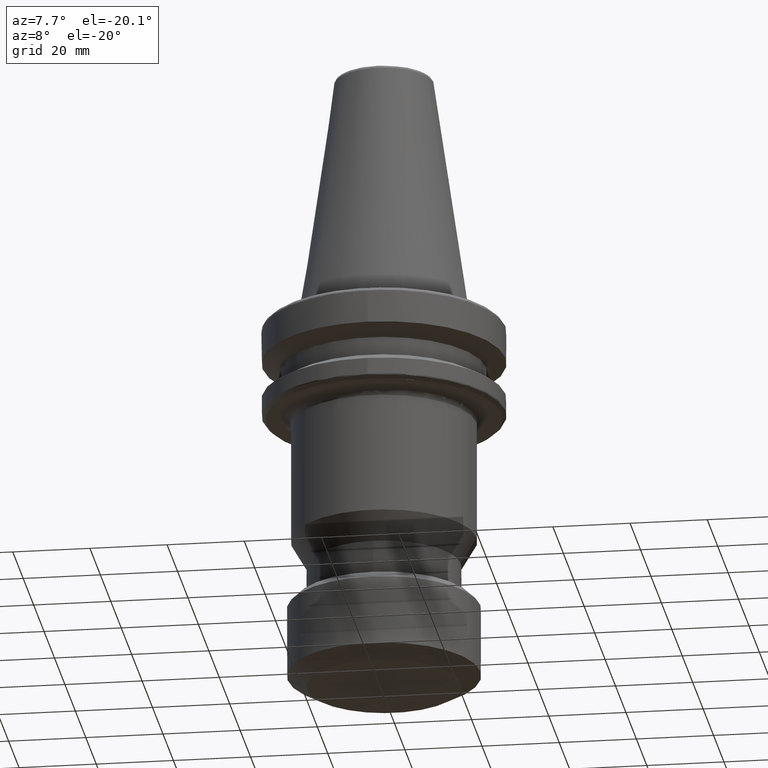
[diagram: clean part render]
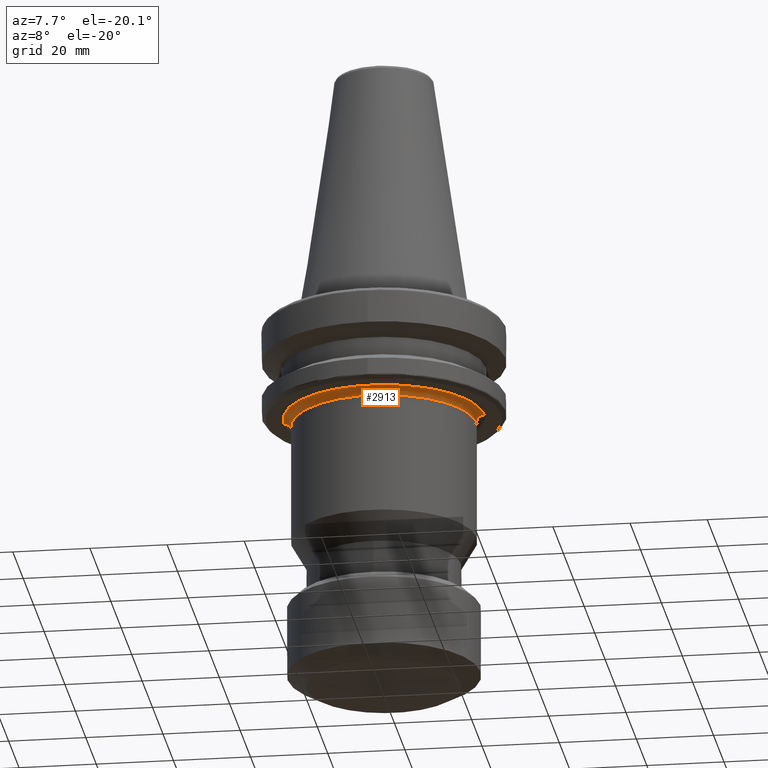
[diagram: same view with one face highlighted and labeled with its STEP entity id]
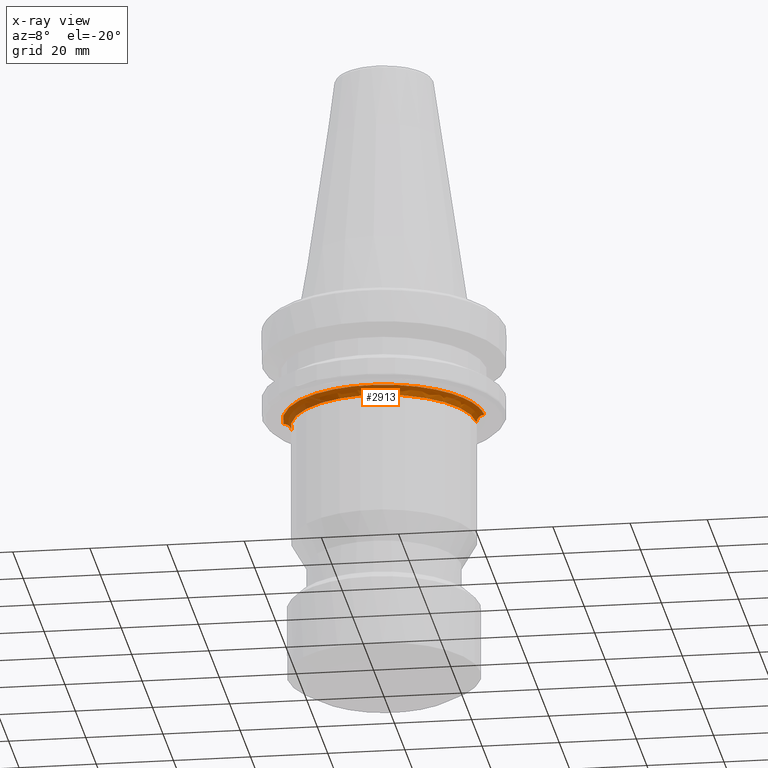
[diagram: x-ray of the same camera — body ghosted, the highlighted face saturated]
A machine part, auxiliary view. The second image highlights one B-rep face of the part: STEP entity #2913.
The next image is the same camera in x-ray: the body ghosted, the highlighted face saturated — about 0% of this face is hidden behind the body in this view.
In plain terms, the highlighted face is a freeform B-spline surface patch.
Its self-contained STEP definition (entity closure, byte-faithful):
#40 = CARTESIAN_POINT ( 'NONE',  ( 26.19966683300000200, -52.39933366700000100, -27.00999166900000100 ) ) ;
#62 = CARTESIAN_POINT ( 'NONE',  ( 3.104077502384242800, -25.81438742069553200, -27.00000000000000000 ) ) ;
#85 = CARTESIAN_POINT ( 'NONE',  ( 23.32670334479037800, -11.48326905495359000, -27.00000000000000400 ) ) ;
#114 = CARTESIAN_POINT ( 'NONE',  ( 20.78415249155781200, -15.62112912890546000, -27.00000000000000400 ) ) ;
#118 = DIRECTION ( 'NONE',  ( 0.0000000000000000000, 0.0000000000000000000, 1.000000000000000000 ) ) ;
#135 = ORIENTED_EDGE ( 'NONE', *, *, #437, .F. ) ;
#138 = CARTESIAN_POINT ( 'NONE',  ( 14.75446532502820000, -21.40816112384272100, -27.00000000000001400 ) ) ;
#143 = CARTESIAN_POINT ( 'NONE',  ( 12.12101987832014900, -23.00184736522359300, -26.99999999999999600 ) ) ;
#151 = CARTESIAN_POINT ( 'NONE',  ( -25.97123893675590600, -1.442377687640199700, -27.00000000000000000 ) ) ;
#166 = CARTESIAN_POINT ( 'NONE',  ( 24.86802488813741600, -7.589235812020541000, -26.99999999999998900 ) ) ;
#184 = CARTESIAN_POINT ( 'NONE',  ( -5.093354145939466400, -25.50617348431059000, -27.00000000000000400 ) ) ;
#197 = CARTESIAN_POINT ( 'NONE',  ( -4.300309107981459700, -25.64334420217292600, -27.00000000000000400 ) ) ;
#232 = CARTESIAN_POINT ( 'NONE',  ( -23.87355915499999900, -47.74711830900001500, -27.83989247000000200 ) ) ;
#237 = CARTESIAN_POINT ( 'NONE',  ( 20.32553937740285800, -16.21601911743069700, -27.00000000000000400 ) ) ;
#238 = CARTESIAN_POINT ( 'NONE',  ( 19.01593000698997200, -17.73119235035552800, -27.00000000000000400 ) ) ;
#248 = CARTESIAN_POINT ( 'NONE',  ( -25.77823460993109400, -3.388678674161045300, -27.00000000000000400 ) ) ;
#276 = CARTESIAN_POINT ( 'NONE',  ( 16.44916333196356100, -20.13773886078993400, -27.00000000000000400 ) ) ;
#304 = CARTESIAN_POINT ( 'NONE',  ( -23.99999999992037700, -7.383723426551921600E-009, -28.99999999972065400 ) ) ;
#306 = CARTESIAN_POINT ( 'NONE',  ( 23.99999999992037700, -2.155047082289592700E-009, -28.99999999972065400 ) ) ;
#320 = CARTESIAN_POINT ( 'NONE',  ( 19.39661183874186500, -17.31962112285928200, -26.99999999999999600 ) ) ;
#330 = CARTESIAN_POINT ( 'NONE',  ( 0.5414836911279515800, -26.00001145352541300, -27.00000000000000700 ) ) ;
#331 = CARTESIAN_POINT ( 'NONE',  ( 25.59685017519424500, -4.581614076757237100, -26.99999999999999600 ) ) ;
#335 = CARTESIAN_POINT ( 'NONE',  ( -21.23656736513235500, -15.00289002591112800, -27.00000000000000000 ) ) ;
#356 = CARTESIAN_POINT ( 'NONE',  ( 12.00644787966968300, -23.06185972964852800, -26.99999999999999600 ) ) ;
#371 = CARTESIAN_POINT ( 'NONE',  ( -25.99999999870136600, -0.5776924334012778500, -26.99999999999999600 ) ) ;
#375 = CARTESIAN_POINT ( 'NONE',  ( -17.70197161220481200, -19.04561512326198200, -27.00000000000000000 ) ) ;
#380 = CARTESIAN_POINT ( 'NONE',  ( -19.11481241806988200, -17.62454998192991000, -27.00000000000000000 ) ) ;
#395 = CARTESIAN_POINT ( 'NONE',  ( -18.77939473729125200, -17.98752814714280400, -26.99999999999998900 ) ) ;
#397 = CARTESIAN_POINT ( 'NONE',  ( 22.02554887854651600, -13.81646489940507600, -27.00000000000000000 ) ) ;
#410 = CARTESIAN_POINT ( 'NONE',  ( -3.505988278842941500, -25.76394866143058600, -27.00000000000000400 ) ) ;
#413 = CARTESIAN_POINT ( 'NONE',  ( -22.24557741350470900, -13.45863538396728700, -27.00000000000000400 ) ) ;
#415 = CARTESIAN_POINT ( 'NONE',  ( 25.99999999870136900, -1.155726200124189300, -27.00000000000000400 ) ) ;
#437 = EDGE_CURVE ( 'NONE', #3239, #2621, #933, .T. ) ;
#444 = CARTESIAN_POINT ( 'NONE',  ( 14.44111240457221800, -21.62133235628021700, -26.99999999999999600 ) ) ;
#456 = CARTESIAN_POINT ( 'NONE',  ( 23.87355915500000200, 0.0000000000000000000, -27.83989247000000900 ) ) ;
#459 = FACE_OUTER_BOUND ( 'NONE', #3038, .T. ) ;
#465 = CARTESIAN_POINT ( 'NONE',  ( -24.99974116010629300, -7.142536460974127100, -27.00000000000000000 ) ) ;
#470 = CARTESIAN_POINT ( 'NONE',  ( -24.96322599096960500, -7.268938644655939600, -26.99999999999999600 ) ) ;
#476 = CARTESIAN_POINT ( 'NONE',  ( -22.27147456929179000, -13.41573599059416100, -27.00000000000000400 ) ) ;
#499 = CARTESIAN_POINT ( 'NONE',  ( -24.97995294344397300, -7.211285355209520600, -27.00000000000001100 ) ) ;
#504 = CARTESIAN_POINT ( 'NONE',  ( -24.97141933086528800, -7.240738158190048100, -26.99999999999999600 ) ) ;
#507 = CARTESIAN_POINT ( 'NONE',  ( 25.92330383351346900, -2.306168677958689200, -26.99999999999999300 ) ) ;
#512 = CARTESIAN_POINT ( 'NONE',  ( 23.29347520418961900, -11.55068449352810100, -27.00000000000000700 ) ) ;
#514 = CARTESIAN_POINT ( 'NONE',  ( -17.24884718968547400, -19.45464229196644700, -27.00000000000000000 ) ) ;
#519 = CARTESIAN_POINT ( 'NONE',  ( 8.986013709968119700, -24.39840953480420900, -27.00000000000000000 ) ) ;
#524 = CARTESIAN_POINT ( 'NONE',  ( -24.82842712506634100, 0.0000000000000000000, -27.00000000092554200 ) ) ;
#528 = CARTESIAN_POINT ( 'NONE',  ( -25.99999999776530000, 0.0000000000000000000, -26.99999999980891000 ) ) ;
#529 = CARTESIAN_POINT ( 'NONE',  ( -25.68312096697723100, -4.099460013802481500, -26.99999999999999600 ) ) ;
#535 = CARTESIAN_POINT ( 'NONE',  ( -25.51678912680888100, -5.064143519805744700, -27.00000000000000400 ) ) ;
#538 = CARTESIAN_POINT ( 'NONE',  ( -24.96571848952509500, -7.260370913769368600, -26.99999999999999300 ) ) ;
#542 = CARTESIAN_POINT ( 'NONE',  ( -25.77468160764975400, -3.415529047429208400, -26.99999999999999600 ) ) ;
#546 = CARTESIAN_POINT ( 'NONE',  ( -21.02016050427059200, -15.30269145322316300, -27.00000000000000000 ) ) ;
#549 = CARTESIAN_POINT ( 'NONE',  ( 25.99999999776529300, 0.0000000000000000000, -26.99999999980890700 ) ) ;
#550 = CARTESIAN_POINT ( 'NONE',  ( -20.91054945717181100, -15.45165733646726600, -27.00000000000000700 ) ) ;
#553 = CARTESIAN_POINT ( 'NONE',  ( -23.99999999992037700, -7.383723426551921600E-009, -28.99999999972065400 ) ) ;
#557 = CARTESIAN_POINT ( 'NONE',  ( -14.85587953646751200, -21.33791746272286000, -27.00000000000000700 ) ) ;
#560 = CARTESIAN_POINT ( 'NONE',  ( -24.00000000092554200, 0.0000000000000000000, -27.82842712506634400 ) ) ;
#601 = CIRCLE ( 'NONE', #2604, 24.00000000000000000 ) ;
#624 = ORIENTED_EDGE ( 'NONE', *, *, #1142, .T. ) ;
#661 = CARTESIAN_POINT ( 'NONE',  ( -25.99999999776530000, 0.0000000000000000000, -26.99999999980891000 ) ) ;
#662 = CARTESIAN_POINT ( 'NONE',  ( 22.20658252020515300, -13.52288034976372600, -27.00000000000000700 ) ) ;
#668 = CARTESIAN_POINT ( 'NONE',  ( -10.25741779659781900, -23.89358536426445000, -27.00000000000000000 ) ) ;
#670 = CARTESIAN_POINT ( 'NONE',  ( 25.68864441090222100, -4.017603294972310800, -26.99999999999999300 ) ) ;
#672 = CARTESIAN_POINT ( 'NONE',  ( -26.19966683300000200, -52.39933366700000100, -27.00999166900000100 ) ) ;
#693 = CARTESIAN_POINT ( 'NONE',  ( -16.17040547617392600, -20.36984295842008000, -27.00000000000000000 ) ) ;
#705 = CARTESIAN_POINT ( 'NONE',  ( -17.40084631656226200, -19.31927169557402700, -27.00000000000000000 ) ) ;
#710 = CARTESIAN_POINT ( 'NONE',  ( -17.13969495277481800, -19.55074555781860500, -26.99999999999999600 ) ) ;
#714 = CARTESIAN_POINT ( 'NONE',  ( 19.07623634922922300, -17.66629417094763400, -27.00000000000000400 ) ) ;
#717 = CARTESIAN_POINT ( 'NONE',  ( -26.19966683299999800, 0.0000000000000000000, -27.00999166900000500 ) ) ;
#734 = CARTESIAN_POINT ( 'NONE',  ( -6.530187873174761600, -25.16693352565914000, -27.00000000000001100 ) ) ;
#780 = CARTESIAN_POINT ( 'NONE',  ( -20.53344279551040000, -15.95542441302661300, -26.99999999999999600 ) ) ;
#799 = CARTESIAN_POINT ( 'NONE',  ( -19.35718763193430900, -17.35859722587387900, -27.00000000000000000 ) ) ;
#802 = CARTESIAN_POINT ( 'NONE',  ( -25.77230357713734000, -3.433428692955680100, -27.00000000000000400 ) ) ;
#810 = CARTESIAN_POINT ( 'NONE',  ( -11.08457284719021800, -23.52875138252140300, -27.00000000000000400 ) ) ;
#815 = CARTESIAN_POINT ( 'NONE',  ( -13.76062137475784800, -22.07007659047286600, -27.00000000000000000 ) ) ;
#839 = CARTESIAN_POINT ( 'NONE',  ( 24.82842712506634100, 0.0000000000000000000, -27.00000000092554200 ) ) ;
#854 = CARTESIAN_POINT ( 'NONE',  ( 15.78799487154204000, -20.66764841297290200, -27.00000000000000000 ) ) ;
#855 = CARTESIAN_POINT ( 'NONE',  ( -18.29273037104589200, -18.48664046052905600, -27.00000000000000700 ) ) ;
#862 = CARTESIAN_POINT ( 'NONE',  ( -19.17034733411793500, -17.56412491532577700, -27.00000000000000000 ) ) ;
#869 = CARTESIAN_POINT ( 'NONE',  ( -20.81665982417676400, -15.57778597358737800, -27.00000000000001100 ) ) ;
#870 = CARTESIAN_POINT ( 'NONE',  ( 18.95638900203592700, -17.79497571352230500, -27.00000000000000400 ) ) ;
#933 = B_SPLINE_CURVE_WITH_KNOTS ( 'NONE', 3,
 ( #661, #371, #151, #2860, #2838, #1527, #2760, #248, #542, #802, #966, #529, #535, #1126, #1215, #1239, #465, #499, #504, #538, #470, #3444, #1046, #2070, #2077, #2050, #2021, #2001, #2057, #2183, #2092, #2150, #2766, #1795, #1023, #476, #413, #1014, #2423, #1119, #335, #546, #550, #1382, #1410, #869, #780, #1403, #1249, #799, #2514, #862, #2793, #380, #395, #855, #375, #705, #514, #1996, #710, #1973, #1869, #693, #1203, #1947, #1967, #3341, #557, #1577, #815, #1052, #2965, #1206, #2428, #1275, #1916, #810, #668, #2963, #1598, #2915, #3067, #2991, #1502, #1505, #1738, #1724, #734, #2587, #184, #197, #2174, #410, #2396, #3243, #330, #2240, #3141, #1553, #2273, #62, #2233, #1578, #2799, #1653, #2943, #1662, #2649, #2504, #2102, #519, #3443, #1086, #1845, #2034, #3375, #3184, #2992, #356, #143, #3414, #2248, #2257, #2072, #444, #3143, #1677, #138, #2110, #854, #276, #3166, #3161, #2698, #3158, #2588, #1818, #3465, #3464, #2959, #870, #238, #3326, #714, #320, #3368, #237, #2675, #3131, #3194, #1867, #114, #1725, #1729, #1863, #397, #1878, #3342, #1796, #662, #1765, #3425, #3422, #3269, #512, #85, #1094, #1601, #1607, #3268, #3117, #1136, #166, #1798, #1802, #2882, #3210, #3205, #3376, #1514, #331, #670, #3175, #3473, #1806, #3353, #3346, #3190, #507, #415, #2719 ),
 .UNSPECIFIED., .F., .F.,
 ( 4, 1, 1, 1, 1, 1, 1, 2, 2, 1, 1, 1, 1, 1, 1, 2, 2, 1, 1, 1, 1, 1, 2, 2, 1, 1, 1, 1, 2, 2, 1, 1, 1, 1, 2, 2, 1, 1, 1, 1, 2, 2, 1, 1, 1, 1, 2, 2, 1, 1, 1, 2, 2, 1, 1, 1, 2, 2, 1, 1, 1, 2, 2, 1, 1, 2, 2, 1, 2, 2, 2, 1, 1, 2, 2, 1, 1, 2, 2, 1, 1, 1, 2, 2, 1, 1, 1, 2, 2, 1, 1, 1, 2, 2, 1, 1, 1, 1, 2, 2, 1, 1, 1, 1, 2, 2, 1, 1, 1, 1, 2, 2, 1, 1, 1, 1, 2, 2, 1, 1, 1, 1, 2, 2, 1, 1, 1, 1, 1, 1, 2, 2, 1, 1, 1, 1, 1, 1, 2, 2, 4 ),
 ( 0.0000000000000000000, 0.03125000000000537100, 0.04687500000000804200, 0.05468750000000935400, 0.05859375000001001300, 0.06054687500001036000, 0.06152343750001051900, 0.06201171875001061000, 0.06250000000001070000, 0.09375000000001700000, 0.1093750000000201500, 0.1171875000000217200, 0.1210937500000225400, 0.1230468750000229500, 0.1240234375000231500, 0.1245117187500232500, 0.1250000000000233400, 0.1562500000000286400, 0.1718750000000312300, 0.1796875000000325300, 0.1835937500000331100, 0.1855468750000333300, 0.1865234375000333900, 0.1875000000000334500, 0.2031250000000347200, 0.2109375000000353600, 0.2148437500000356400, 0.2167968750000358000, 0.2177734375000358300, 0.2187500000000358600, 0.2343750000000359200, 0.2421875000000359200, 0.2460937500000359200, 0.2480468750000358900, 0.2490234375000358600, 0.2500000000000358000, 0.2656250000000351400, 0.2734375000000348600, 0.2773437500000346900, 0.2792968750000345800, 0.2802734375000344700, 0.2812500000000343600, 0.2968750000000325900, 0.3046875000000317000, 0.3085937500000312500, 0.3105468750000309800, 0.3115234375000308600, 0.3125000000000307500, 0.3281250000000284800, 0.3359375000000273100, 0.3398437500000267600, 0.3417968750000264800, 0.3437500000000262000, 0.3593750000000239800, 0.3671875000000228700, 0.3710937500000223200, 0.3730468750000220900, 0.3750000000000218700, 0.3906250000000200400, 0.3984375000000191500, 0.4023437500000186500, 0.4042968750000184300, 0.4062500000000182100, 0.4218750000000166500, 0.4296875000000158800, 0.4335937500000154900, 0.4375000000000151000, 0.4531250000000136000, 0.4609375000000128200, 0.4687500000000120500, 0.5000000000000089900, 0.5156250000000074400, 0.5234375000000066600, 0.5273437500000063300, 0.5312500000000060000, 0.5468750000000045500, 0.5546875000000037700, 0.5585937500000034400, 0.5625000000000031100, 0.5781250000000014400, 0.5859375000000005600, 0.5898437500000001100, 0.5917968749999998900, 0.5937499999999996700, 0.6093749999999981100, 0.6171874999999973400, 0.6210937499999970000, 0.6230468749999967800, 0.6249999999999965600, 0.6406249999999953400, 0.6484374999999946700, 0.6523437499999943400, 0.6542968749999942300, 0.6562499999999941200, 0.6718749999999934500, 0.6796874999999931200, 0.6835937499999930100, 0.6855468749999930100, 0.6865234374999930100, 0.6874999999999928900, 0.7031249999999934500, 0.7109374999999937800, 0.7148437499999938900, 0.7167968749999940000, 0.7177734374999940000, 0.7187499999999941200, 0.7343749999999945600, 0.7421874999999947800, 0.7460937499999948900, 0.7480468749999948900, 0.7490234374999948900, 0.7499999999999950000, 0.7656249999999960000, 0.7734374999999964500, 0.7773437499999966700, 0.7792968749999967800, 0.7802734374999968900, 0.7812499999999968900, 0.7968749999999978900, 0.8046874999999982200, 0.8085937499999983300, 0.8105468749999983300, 0.8115234374999982200, 0.8124999999999982200, 0.8437499999999990000, 0.8593749999999993300, 0.8671874999999995600, 0.8710937499999996700, 0.8730468749999996700, 0.8740234374999996700, 0.8745117187499996700, 0.8749999999999995600, 0.9062500000000001100, 0.9218750000000002200, 0.9296875000000003300, 0.9335937500000003300, 0.9355468750000003300, 0.9365234375000004400, 0.9370117187500003300, 0.9375000000000003300, 1.000000000000000000 ),
 .UNSPECIFIED. ) ;
#966 = CARTESIAN_POINT ( 'NONE',  ( -25.77126760526514500, -3.441200361936533900, -27.00000000000000400 ) ) ;
#1014 = CARTESIAN_POINT ( 'NONE',  ( -22.23329943804823500, -13.47891188229115900, -27.00000000000000700 ) ) ;
#1023 = CARTESIAN_POINT ( 'NONE',  ( -22.31022461387792100, -13.35133580223179800, -27.00000000000000000 ) ) ;
#1046 = CARTESIAN_POINT ( 'NONE',  ( -24.40003718514644100, -9.033029072184419300, -26.99999999999999600 ) ) ;
#1047 = CARTESIAN_POINT ( 'NONE',  ( 23.99999999992037700, -2.155047082289592700E-009, -28.99999999972065400 ) ) ;
#1052 = CARTESIAN_POINT ( 'NONE',  ( -13.00464717670222800, -22.51644691301821100, -26.99999999999999300 ) ) ;
#1084 = CARTESIAN_POINT ( 'NONE',  ( 26.19966683299999800, 0.0000000000000000000, -27.00999166900000500 ) ) ;
#1086 = CARTESIAN_POINT ( 'NONE',  ( 9.295421741202069700, -24.28166862968365800, -26.99999999999999600 ) ) ;
#1094 = CARTESIAN_POINT ( 'NONE',  ( 23.34879229093238000, -11.43829017867553700, -27.00000000000000000 ) ) ;
#1119 = CARTESIAN_POINT ( 'NONE',  ( -21.65812015351261600, -14.39580852799166900, -26.99999999999999600 ) ) ;
#1126 = CARTESIAN_POINT ( 'NONE',  ( -25.25947975040561000, -6.176455722364298000, -26.99999999999999300 ) ) ;
#1136 = CARTESIAN_POINT ( 'NONE',  ( 24.77286243896271500, -7.897230195149096400, -26.99999999999998600 ) ) ;
#1142 = EDGE_CURVE ( 'NONE', #2712, #1908, #601, .T. ) ;
#1174 = EDGE_CURVE ( 'NONE', #2621, #1908, #1489, .T. ) ;
#1203 = CARTESIAN_POINT ( 'NONE',  ( -15.49467714682317000, -20.88105631146440500, -26.99999999999999300 ) ) ;
#1206 = CARTESIAN_POINT ( 'NONE',  ( -12.45642327227735700, -22.82195060018943200, -26.99999999999999300 ) ) ;
#1215 = CARTESIAN_POINT ( 'NONE',  ( -25.11501117148558400, -6.729323851698944200, -27.00000000000000400 ) ) ;
#1239 = CARTESIAN_POINT ( 'NONE',  ( -25.03882340934599100, -7.004935923380101000, -26.99999999999999300 ) ) ;
#1249 = CARTESIAN_POINT ( 'NONE',  ( -19.61544421592183700, -17.06813388649957400, -27.00000000000000000 ) ) ;
#1275 = CARTESIAN_POINT ( 'NONE',  ( -12.29234183101619100, -22.91074956343334900, -27.00000000000000000 ) ) ;
#1361 = ORIENTED_EDGE ( 'NONE', *, *, #2595, .F. ) ;
#1382 = CARTESIAN_POINT ( 'NONE',  ( -20.86327166198635700, -15.51529953705503600, -27.00000000000000000 ) ) ;
#1402 = CARTESIAN_POINT ( 'NONE',  ( 25.99999999776529300, 0.0000000000000000000, -26.99999999980890700 ) ) ;
#1403 = CARTESIAN_POINT ( 'NONE',  ( -20.12041013883467100, -16.47773042812779600, -27.00000000000000000 ) ) ;
#1410 = CARTESIAN_POINT ( 'NONE',  ( -20.83168610249757800, -15.55768315504631100, -26.99999999999999300 ) ) ;
#1489 =( BOUNDED_CURVE ( )  B_SPLINE_CURVE ( 3, ( #1402, #839, #1903, #1047 ),
 .UNSPECIFIED., .F., .F. ) 
 B_SPLINE_CURVE_WITH_KNOTS ( ( 4, 4 ),
 ( 0.06314145700000105300, 0.9368585430000011500 ),
 .UNSPECIFIED. ) 
 CURVE ( )  GEOMETRIC_REPRESENTATION_ITEM ( )  RATIONAL_B_SPLINE_CURVE ( ( 0.9565783021659924900, 0.7697947703959741000, 0.7697947703959745500, 0.9565783021659939300 ) ) 
 REPRESENTATION_ITEM ( '' )  );
#1502 = CARTESIAN_POINT ( 'NONE',  ( -8.178511595526403600, -24.69015344385338300, -27.00000000000000000 ) ) ;
#1505 = CARTESIAN_POINT ( 'NONE',  ( -7.293632124259830500, -24.95849558580214000, -27.00000000000000000 ) ) ;
#1514 = CARTESIAN_POINT ( 'NONE',  ( 25.38168027336061200, -5.702840401276019700, -27.00000000000000000 ) ) ;
#1522 = CARTESIAN_POINT ( 'NONE',  ( 24.00999166900000500, -48.01998333899999900, -29.19966683299999800 ) ) ;
#1527 = CARTESIAN_POINT ( 'NONE',  ( -25.80241749502392100, -3.200681717339970400, -27.00000000000000400 ) ) ;
#1534 = CARTESIAN_POINT ( 'NONE',  ( -24.83989247000000200, 0.0000000000000000000, -26.87355915500000200 ) ) ;
#1553 = CARTESIAN_POINT ( 'NONE',  ( 2.699419017325197100, -25.85985077920494700, -26.99999999999999300 ) ) ;
#1577 = CARTESIAN_POINT ( 'NONE',  ( -14.39139786530606500, -21.65964961511502600, -27.00000000000000000 ) ) ;
#1578 = CARTESIAN_POINT ( 'NONE',  ( 4.565620906121485400, -25.60590283367456300, -26.99999999999999600 ) ) ;
#1598 = CARTESIAN_POINT ( 'NONE',  ( -9.659572736224838300, -24.13911375561237100, -27.00000000000000000 ) ) ;
#1601 = CARTESIAN_POINT ( 'NONE',  ( 23.36068802580966900, -11.41397225943945100, -27.00000000000000400 ) ) ;
#1607 = CARTESIAN_POINT ( 'NONE',  ( 23.69393819174926500, -10.73041577424988100, -26.99999999999998900 ) ) ;
#1653 = CARTESIAN_POINT ( 'NONE',  ( 5.877953733435296300, -25.32722066120916100, -26.99999999999999300 ) ) ;
#1662 = CARTESIAN_POINT ( 'NONE',  ( 6.271798372257563900, -25.23255630010512400, -27.00000000000000000 ) ) ;
#1677 = CARTESIAN_POINT ( 'NONE',  ( 14.70086257795422600, -21.44501126656554000, -27.00000000000000700 ) ) ;
#1724 = CARTESIAN_POINT ( 'NONE',  ( -6.656261248129432300, -25.13387420907864500, -27.00000000000000700 ) ) ;
#1725 = CARTESIAN_POINT ( 'NONE',  ( 21.05356011741378500, -15.26193392793729600, -27.00000000000000400 ) ) ;
#1729 = CARTESIAN_POINT ( 'NONE',  ( 21.42117827746105600, -14.74606983426283200, -26.99999999999999300 ) ) ;
#1738 = CARTESIAN_POINT ( 'NONE',  ( -6.911584712295002000, -25.06487294813922900, -27.00000000000000700 ) ) ;
#1765 = CARTESIAN_POINT ( 'NONE',  ( 22.42761734331104900, -13.15913694742190800, -26.99999999999998900 ) ) ;
#1795 = CARTESIAN_POINT ( 'NONE',  ( -22.39997156091740700, -13.20071100793418100, -26.99999999999998600 ) ) ;
#1796 = CARTESIAN_POINT ( 'NONE',  ( 22.19209709610622000, -13.54664077463144500, -26.99999999999999600 ) ) ;
#1798 = CARTESIAN_POINT ( 'NONE',  ( 24.91441086076522300, -7.434773084523197200, -27.00000000000000400 ) ) ;
#1802 = CARTESIAN_POINT ( 'NONE',  ( 24.93730503408923100, -7.357425336791253700, -27.00000000000001100 ) ) ;
#1806 = CARTESIAN_POINT ( 'NONE',  ( 25.76032881976687600, -3.522235787732480400, -27.00000000000000400 ) ) ;
#1818 = CARTESIAN_POINT ( 'NONE',  ( 17.44635417937212900, -19.28319429654946800, -26.99999999999999600 ) ) ;
#1845 = CARTESIAN_POINT ( 'NONE',  ( 9.358604325385890400, -24.25738313510080600, -27.00000000000000400 ) ) ;
#1863 = CARTESIAN_POINT ( 'NONE',  ( 21.82780259999396200, -14.12888966539836500, -27.00000000000000400 ) ) ;
#1867 = CARTESIAN_POINT ( 'NONE',  ( 20.76661904246542200, -15.64443211961802000, -27.00000000000000700 ) ) ;
#1869 = CARTESIAN_POINT ( 'NONE',  ( -16.73072901558803200, -19.90774041814193800, -26.99999999999998900 ) ) ;
#1878 = CARTESIAN_POINT ( 'NONE',  ( 22.12303054714431700, -13.65929384601815900, -27.00000000000000400 ) ) ;
#1903 = CARTESIAN_POINT ( 'NONE',  ( 24.00000000092554200, 0.0000000000000000000, -27.82842712506634400 ) ) ;
#1908 = VERTEX_POINT ( 'NONE', #306 ) ;
#1916 = CARTESIAN_POINT ( 'NONE',  ( -11.77891240519395700, -23.18459172037248100, -26.99999999999999600 ) ) ;
#1947 = CARTESIAN_POINT ( 'NONE',  ( -15.15130859880589900, -21.12968641866655200, -27.00000000000000400 ) ) ;
#1967 = CARTESIAN_POINT ( 'NONE',  ( -15.00297113893951100, -21.23474719975602900, -27.00000000000001100 ) ) ;
#1973 = CARTESIAN_POINT ( 'NONE',  ( -17.11871299726231000, -19.56912238749819400, -26.99999999999999600 ) ) ;
#1987 = CARTESIAN_POINT ( 'NONE',  ( -24.83989246999999900, -49.67978493900000100, -26.87355915500000600 ) ) ;
#1996 = CARTESIAN_POINT ( 'NONE',  ( -17.18339688979780500, -19.51234589975670300, -26.99999999999999300 ) ) ;
#2001 = CARTESIAN_POINT ( 'NONE',  ( -23.41105321507958000, -11.31030885182756900, -26.99999999999999600 ) ) ;
#2021 = CARTESIAN_POINT ( 'NONE',  ( -23.44110351871951200, -11.24803929080949100, -26.99999999999999300 ) ) ;
#2034 = CARTESIAN_POINT ( 'NONE',  ( 9.900976713433621500, -24.04659528867705400, -27.00000000000000700 ) ) ;
#2050 = CARTESIAN_POINT ( 'NONE',  ( -23.51062201026018500, -11.10251412854370100, -26.99999999999999300 ) ) ;
#2057 = CARTESIAN_POINT ( 'NONE',  ( -23.39096264278446200, -11.35180003346911600, -26.99999999999999600 ) ) ;
#2070 = CARTESIAN_POINT ( 'NONE',  ( -23.91096421816758500, -10.22293659802131000, -27.00000000000000000 ) ) ;
#2072 = CARTESIAN_POINT ( 'NONE',  ( 14.07467311116374700, -21.86355022607616800, -27.00000000000000000 ) ) ;
#2077 = CARTESIAN_POINT ( 'NONE',  ( -23.64726345886486700, -10.81054572445101800, -27.00000000000000000 ) ) ;
#2092 = CARTESIAN_POINT ( 'NONE',  ( -23.19525046330343100, -11.75335007895945300, -26.99999999999999600 ) ) ;
#2102 = CARTESIAN_POINT ( 'NONE',  ( 8.551045964959717700, -24.55612344393568900, -27.00000000000001100 ) ) ;
#2110 = CARTESIAN_POINT ( 'NONE',  ( 15.20271155682067000, -21.09770032615622900, -26.99999999999998900 ) ) ;
#2150 = CARTESIAN_POINT ( 'NONE',  ( -22.91969818063308400, -12.28694697482320400, -26.99999999999998900 ) ) ;
#2174 = CARTESIAN_POINT ( 'NONE',  ( -3.770023376410581100, -25.72662759771800000, -27.00000000000000400 ) ) ;
#2183 = CARTESIAN_POINT ( 'NONE',  ( -23.38175751896057300, -11.37075269827963600, -26.99999999999999600 ) ) ;
#2233 = CARTESIAN_POINT ( 'NONE',  ( 3.770460417670116600, -25.73077716080963000, -27.00000000000000400 ) ) ;
#2240 = CARTESIAN_POINT ( 'NONE',  ( 1.352265720154100400, -25.97472821558067900, -27.00000000000000000 ) ) ;
#2248 = CARTESIAN_POINT ( 'NONE',  ( 12.67845677757515000, -22.70483438357956600, -27.00000000000000700 ) ) ;
#2257 = CARTESIAN_POINT ( 'NONE',  ( 13.33195081608681000, -22.33163894518122200, -26.99999999999999600 ) ) ;
#2273 = CARTESIAN_POINT ( 'NONE',  ( 2.968476770612419100, -25.83033935018921300, -27.00000000000000000 ) ) ;
#2347 = CARTESIAN_POINT ( 'NONE',  ( 24.83989247000000200, 0.0000000000000000000, -26.87355915500000200 ) ) ;
#2396 = CARTESIAN_POINT ( 'NONE',  ( -2.162817311835314000, -25.93253219786938500, -26.99999999999998900 ) ) ;
#2423 = CARTESIAN_POINT ( 'NONE',  ( -22.00014665782155600, -13.86263242698291300, -27.00000000000000400 ) ) ;
#2428 = CARTESIAN_POINT ( 'NONE',  ( -12.34603787583893600, -22.88185336665954500, -26.99999999999999600 ) ) ;
#2464 = CARTESIAN_POINT ( 'NONE',  ( 24.83989246999999900, -49.67978493900000100, -26.87355915500000600 ) ) ;
#2473 = CARTESIAN_POINT ( 'NONE',  ( 0.0000000000000000000, 0.0000000000000000000, -28.99999999999999600 ) ) ;
#2504 = CARTESIAN_POINT ( 'NONE',  ( 7.674769882186919500, -24.85135117500836400, -27.00000000000000000 ) ) ;
#2514 = CARTESIAN_POINT ( 'NONE',  ( -19.22661593430777300, -17.50264429810814100, -26.99999999999999600 ) ) ;
#2524 = CARTESIAN_POINT ( 'NONE',  ( -23.87355915500000200, 0.0000000000000000000, -27.83989247000000900 ) ) ;
#2553 = CARTESIAN_POINT ( 'NONE',  ( 23.87355915499999900, -47.74711830900001500, -27.83989247000000200 ) ) ;
#2587 = CARTESIAN_POINT ( 'NONE',  ( -5.879248505702621600, -25.33226589281408200, -26.99999999999999600 ) ) ;
#2588 = CARTESIAN_POINT ( 'NONE',  ( 17.07398642452581000, -19.60815652009771900, -26.99999999999998900 ) ) ;
#2595 = EDGE_CURVE ( 'NONE', #2712, #3239, #2894, .T. ) ;
#2604 = AXIS2_PLACEMENT_3D ( 'NONE', #2473, #118, #2612 ) ;
#2612 = DIRECTION ( 'NONE',  ( 1.000000000000000000, 0.0000000000000000000, -1.445602896647339200E-016 ) ) ;
#2621 = VERTEX_POINT ( 'NONE', #549 ) ;
#2632 = CARTESIAN_POINT ( 'NONE',  ( 24.00999166900000500, 0.0000000000000000000, -29.19966683299999800 ) ) ;
#2649 = CARTESIAN_POINT ( 'NONE',  ( 6.912806509371409700, -25.06977479503013500, -27.00000000000000400 ) ) ;
#2675 = CARTESIAN_POINT ( 'NONE',  ( 20.56467028301363000, -15.90961770897872400, -27.00000000000000400 ) ) ;
#2698 = CARTESIAN_POINT ( 'NONE',  ( 17.00437117867757700, -19.66855881563241200, -27.00000000000000400 ) ) ;
#2712 = VERTEX_POINT ( 'NONE', #304 ) ;
#2719 = CARTESIAN_POINT ( 'NONE',  ( 25.99999999776529300, 0.0000000000000000000, -26.99999999980890700 ) ) ;
#2760 = CARTESIAN_POINT ( 'NONE',  ( -25.78642664417663300, -3.326021468352877700, -27.00000000000000000 ) ) ;
#2766 = CARTESIAN_POINT ( 'NONE',  ( -22.57678616035050500, -12.89803066686391400, -26.99999999999998600 ) ) ;
#2793 = CARTESIAN_POINT ( 'NONE',  ( -19.13276620038981700, -17.60505558406833900, -26.99999999999999600 ) ) ;
#2799 = CARTESIAN_POINT ( 'NONE',  ( 5.485434875337717600, -25.41726759195767500, -27.00000000000000000 ) ) ;
#2838 = CARTESIAN_POINT ( 'NONE',  ( -25.83282632614335100, -2.949900857727889600, -27.00000000000001100 ) ) ;
#2860 = CARTESIAN_POINT ( 'NONE',  ( -25.88735250608161200, -2.447933708158695600, -27.00000000000000000 ) ) ;
#2882 = CARTESIAN_POINT ( 'NONE',  ( 24.94705279130168300, -7.324251362624014700, -27.00000000000000400 ) ) ;
#2894 =( BOUNDED_CURVE ( )  B_SPLINE_CURVE ( 3, ( #553, #560, #524, #528 ),
 .UNSPECIFIED., .F., .F. ) 
 B_SPLINE_CURVE_WITH_KNOTS ( ( 4, 4 ),
 ( 0.06314145699999865200, 0.9368585430000001500 ),
 .UNSPECIFIED. ) 
 CURVE ( )  GEOMETRIC_REPRESENTATION_ITEM ( )  RATIONAL_B_SPLINE_CURVE ( ( 0.9565783021659939300, 0.7697947703959743300, 0.7697947703959739900, 0.9565783021659932700 ) ) 
 REPRESENTATION_ITEM ( '' )  );
#2913 = ADVANCED_FACE ( 'NONE', ( #459 ), #3388, .F. ) ;
#2915 = CARTESIAN_POINT ( 'NONE',  ( -9.539372939363852700, -24.18686555965931000, -26.99999999999999600 ) ) ;
#2943 = CARTESIAN_POINT ( 'NONE',  ( 6.139258054676046700, -25.26514420610414300, -27.00000000000000400 ) ) ;
#2959 = CARTESIAN_POINT ( 'NONE',  ( 18.81675184846855900, -17.94306487863341500, -27.00000000000000700 ) ) ;
#2963 = CARTESIAN_POINT ( 'NONE',  ( -9.839567213071280300, -24.06683094911164400, -27.00000000000000400 ) ) ;
#2965 = CARTESIAN_POINT ( 'NONE',  ( -12.62164300457042500, -22.73151678711452200, -27.00000000000000000 ) ) ;
#2991 = CARTESIAN_POINT ( 'NONE',  ( -8.925726302352563500, -24.42564024247633700, -27.00000000000000000 ) ) ;
#2992 = CARTESIAN_POINT ( 'NONE',  ( 11.83429212175931200, -23.15121974524718600, -27.00000000000000400 ) ) ;
#3038 = EDGE_LOOP ( 'NONE', ( #3287, #135, #1361, #624 ) ) ;
#3067 = CARTESIAN_POINT ( 'NONE',  ( -9.480510626771016200, -24.21000251587589200, -26.99999999999999600 ) ) ;
#3082 = CARTESIAN_POINT ( 'NONE',  ( -24.00999166900000500, 0.0000000000000000000, -29.19966683299999800 ) ) ;
#3117 = CARTESIAN_POINT ( 'NONE',  ( 24.57297552493690800, -8.509494673941697200, -26.99999999999999300 ) ) ;
#3131 = CARTESIAN_POINT ( 'NONE',  ( 20.68281028969527200, -15.75521089184398300, -26.99999999999999600 ) ) ;
#3141 = CARTESIAN_POINT ( 'NONE',  ( 2.295651948936142400, -25.90095537027341900, -27.00000000000000400 ) ) ;
#3143 = CARTESIAN_POINT ( 'NONE',  ( 14.59710313300513800, -21.51577323131551000, -27.00000000000000000 ) ) ;
#3158 = CARTESIAN_POINT ( 'NONE',  ( 17.05017914723374900, -19.62886286237235800, -27.00000000000000700 ) ) ;
#3161 = CARTESIAN_POINT ( 'NONE',  ( 16.93556252015840600, -19.72797693159330400, -26.99999999999999600 ) ) ;
#3166 = CARTESIAN_POINT ( 'NONE',  ( 16.77433204381929600, -19.86573850466450300, -27.00000000000000400 ) ) ;
#3175 = CARTESIAN_POINT ( 'NONE',  ( 25.73059384995400800, -3.734748499198473400, -27.00000000000000000 ) ) ;
#3184 = CARTESIAN_POINT ( 'NONE',  ( 11.43051103375906200, -23.35511673103933800, -27.00000000000000000 ) ) ;
#3190 = CARTESIAN_POINT ( 'NONE',  ( 25.76871312555658000, -3.460273986281397800, -27.00000000000000000 ) ) ;
#3194 = CARTESIAN_POINT ( 'NONE',  ( 20.73313626838946500, -15.68877808887722500, -27.00000000000000400 ) ) ;
#3205 = CARTESIAN_POINT ( 'NONE',  ( 24.95713891539119400, -7.289808709805737600, -27.00000000000001100 ) ) ;
#3210 = CARTESIAN_POINT ( 'NONE',  ( 24.95353706691999900, -7.302129837751411200, -26.99999999999999600 ) ) ;
#3239 = VERTEX_POINT ( 'NONE', #3378 ) ;
#3243 = CARTESIAN_POINT ( 'NONE',  ( -1.082967382255928000, -25.99997709013288700, -27.00000000000000400 ) ) ;
#3268 = CARTESIAN_POINT ( 'NONE',  ( 24.13495363417958500, -9.719126481668888900, -26.99999999999999300 ) ) ;
#3269 = CARTESIAN_POINT ( 'NONE',  ( 23.21527982640687400, -11.70761705263732500, -26.99999999999998600 ) ) ;
#3287 = ORIENTED_EDGE ( 'NONE', *, *, #1174, .F. ) ;
#3326 = CARTESIAN_POINT ( 'NONE',  ( 19.05555656819667100, -17.68859975755119500, -27.00000000000000700 ) ) ;
#3341 = CARTESIAN_POINT ( 'NONE',  ( -14.90381738553611300, -21.30445550289567400, -26.99999999999998900 ) ) ;
#3342 = CARTESIAN_POINT ( 'NONE',  ( 22.16451023282655100, -13.59172939376870700, -27.00000000000000000 ) ) ;
#3346 = CARTESIAN_POINT ( 'NONE',  ( 25.76719121716921300, -3.471590755269435400, -27.00000000000000000 ) ) ;
#3353 = CARTESIAN_POINT ( 'NONE',  ( 25.76445330763471700, -3.491850285049086500, -27.00000000000000400 ) ) ;
#3363 = CARTESIAN_POINT ( 'NONE',  ( -24.00999166900000500, -48.01998333899999900, -29.19966683299999800 ) ) ;
#3368 = CARTESIAN_POINT ( 'NONE',  ( 19.83587399719144900, -16.81917303106458000, -27.00000000000000000 ) ) ;
#3375 = CARTESIAN_POINT ( 'NONE',  ( 10.61461157958770100, -23.74447183353837700, -27.00000000000000000 ) ) ;
#3376 = CARTESIAN_POINT ( 'NONE',  ( 25.14310933393004900, -6.652242555347457100, -27.00000000000000000 ) ) ;
#3378 = CARTESIAN_POINT ( 'NONE',  ( -25.99999999776530000, 0.0000000000000000000, -26.99999999980891000 ) ) ;
#3388 =( BOUNDED_SURFACE ( )  B_SPLINE_SURFACE ( 3, 3, ( 
 ( #1084, #40, #672, #717 ),
 ( #2347, #2464, #1987, #1534 ),
 ( #456, #2553, #232, #2524 ),
 ( #2632, #1522, #3363, #3082 ) ),
 .UNSPECIFIED., .F., .F., .F. ) 
 B_SPLINE_SURFACE_WITH_KNOTS ( ( 4, 4 ),
 ( 4, 4 ),
 ( 0.0000000000000000000, 1.000000000000000000 ),
 ( 0.0000000000000000000, 1.000000000000000000 ),
 .UNSPECIFIED. ) 
 GEOMETRIC_REPRESENTATION_ITEM ( )  RATIONAL_B_SPLINE_SURFACE ( (
 ( 1.000000000000000000, 0.3333333333333330400, 0.3333333333333330400, 1.000000000000000000),
 ( 0.7553208711179720800, 0.2517736237059909900, 0.2517736237059909900, 0.7553208711179720800),
 ( 0.7553208711179720800, 0.2517736237059909900, 0.2517736237059909900, 0.7553208711179720800),
 ( 1.000000000000000000, 0.3333333333333330400, 0.3333333333333330400, 1.000000000000000000) ) ) 
 REPRESENTATION_ITEM ( '' )  SURFACE ( )  );
#3414 = CARTESIAN_POINT ( 'NONE',  ( 12.17989878446854000, -22.97071923053245300, -27.00000000000000400 ) ) ;
#3422 = CARTESIAN_POINT ( 'NONE',  ( 23.05623687198418300, -12.02000164726392300, -26.99999999999999300 ) ) ;
#3425 = CARTESIAN_POINT ( 'NONE',  ( 22.72754216770991300, -12.63884874214970800, -27.00000000000000400 ) ) ;
#3443 = CARTESIAN_POINT ( 'NONE',  ( 9.171749108605002500, -24.32865356440602900, -27.00000000000000400 ) ) ;
#3444 = CARTESIAN_POINT ( 'NONE',  ( -24.75353649691129500, -7.987926724934315100, -27.00000000000000400 ) ) ;
#3464 = CARTESIAN_POINT ( 'NONE',  ( 18.53464497330200100, -18.23628847974342500, -27.00000000000000000 ) ) ;
#3465 = CARTESIAN_POINT ( 'NONE',  ( 17.95910095084175100, -18.81091676551473300, -26.99999999999999600 ) ) ;
#3473 = CARTESIAN_POINT ( 'NONE',  ( 25.75058164977933100, -3.593108750091195300, -26.99999999999999300 ) ) ;